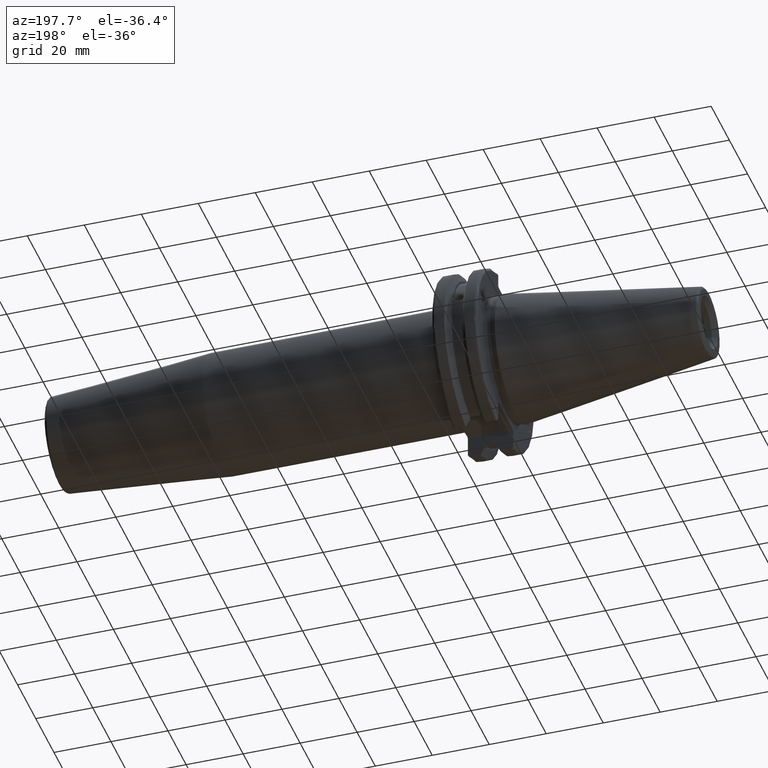
[diagram: clean part render]
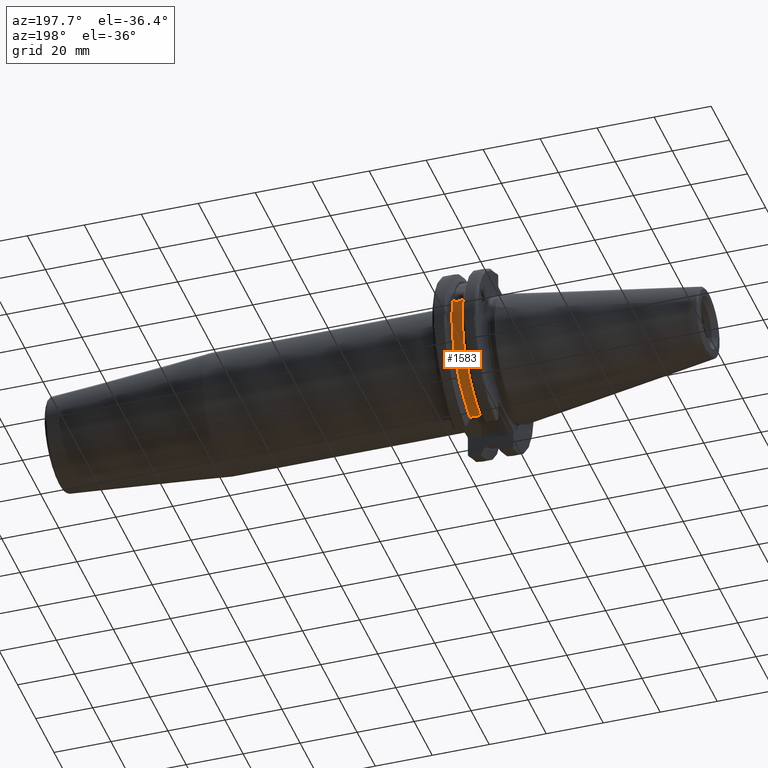
[diagram: same view with one face highlighted and labeled with its STEP entity id]
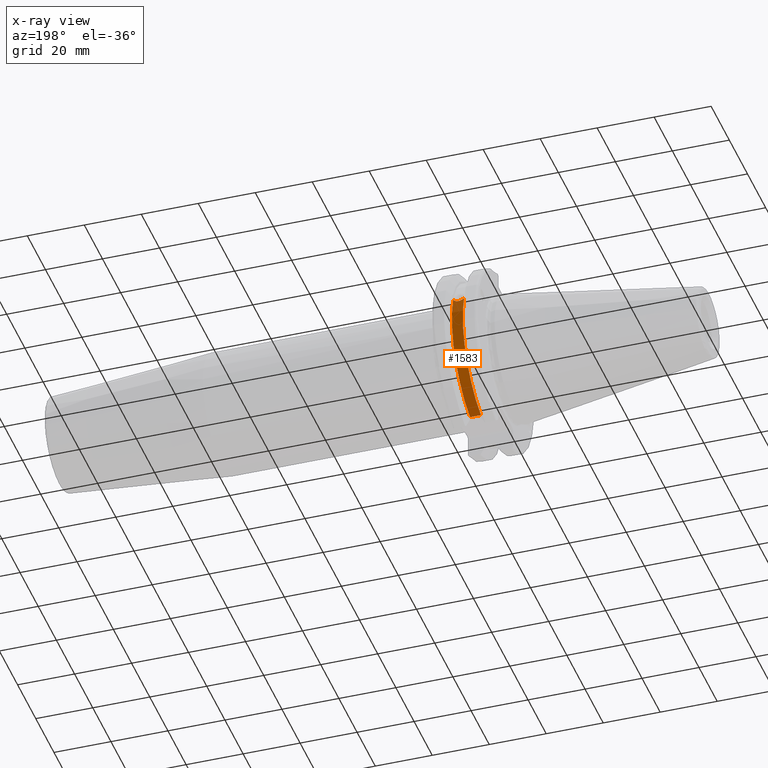
[diagram: x-ray of the same camera — body ghosted, the highlighted face saturated]
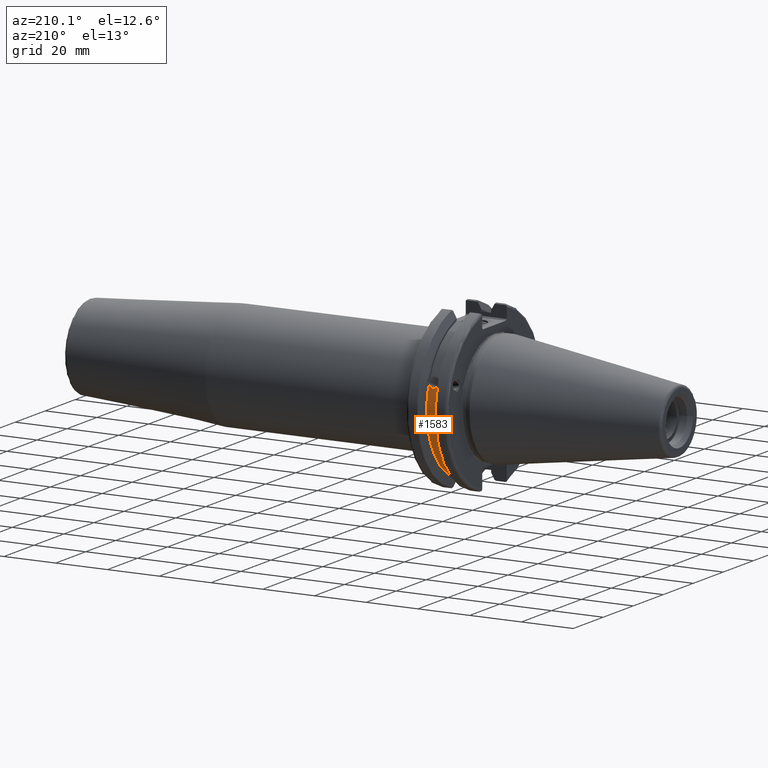
[diagram: same view with one face highlighted and labeled with its STEP entity id]
A machine part, auxiliary view. The second image highlights one B-rep face of the part: STEP entity #1583.
The next image is the same camera in x-ray: the body ghosted, the highlighted face saturated — about 0% of this face is hidden behind the body in this view.
A second angle (auxiliary view) of the same face is appended — the face is thin or edge-on in the first view.
In plain terms, the highlighted cylindrical surface (partial cylindrical patch) has radius 28.15 mm, axis along (1, 0, 0).
Its self-contained STEP definition (entity closure, byte-faithful):
#45=B_SPLINE_CURVE_WITH_KNOTS('',3,(#2684,#2685,#2686,#2687,#2688,#2689,
#2690,#2691,#2692,#2693,#2694,#2695,#2696,#2697),.UNSPECIFIED.,.F.,.F.,
(4,2,2,2,2,2,4),(0.401639126382403,0.474814416953736,0.553950208498303,
0.63308600004287,0.712221791587437,0.791357583132004,0.864532873703335),
 .UNSPECIFIED.);
#165=CYLINDRICAL_SURFACE('',#1754,28.15);
#214=FACE_OUTER_BOUND('',#315,.T.);
#315=EDGE_LOOP('',(#1242,#1243,#1244,#1245));
#411=LINE('',#2773,#508);
#508=VECTOR('',#2073,10.);
#608=CIRCLE('',#1753,28.15);
#609=CIRCLE('',#1755,28.15);
#718=VERTEX_POINT('',#2681);
#719=VERTEX_POINT('',#2683);
#731=VERTEX_POINT('',#2767);
#732=VERTEX_POINT('',#2771);
#907=EDGE_CURVE('',#719,#718,#45,.T.);
#921=EDGE_CURVE('',#731,#719,#608,.T.);
#923=EDGE_CURVE('',#732,#718,#609,.T.);
#924=EDGE_CURVE('',#732,#731,#411,.T.);
#1242=ORIENTED_EDGE('',*,*,#907,.T.);
#1243=ORIENTED_EDGE('',*,*,#923,.F.);
#1244=ORIENTED_EDGE('',*,*,#924,.T.);
#1245=ORIENTED_EDGE('',*,*,#921,.T.);
#1583=ADVANCED_FACE('',(#214),#165,.T.);
#1753=AXIS2_PLACEMENT_3D('',#2768,#2066,#2067);
#1754=AXIS2_PLACEMENT_3D('',#2770,#2069,#2070);
#1755=AXIS2_PLACEMENT_3D('',#2772,#2071,#2072);
#2066=DIRECTION('center_axis',(1.,0.,0.));
#2067=DIRECTION('ref_axis',(0.,0.,-1.));
#2069=DIRECTION('center_axis',(1.,0.,0.));
#2070=DIRECTION('ref_axis',(0.,1.,0.));
#2071=DIRECTION('center_axis',(1.,0.,0.));
#2072=DIRECTION('ref_axis',(0.,0.,-1.));
#2073=DIRECTION('',(-1.,0.,0.));
#2681=CARTESIAN_POINT('',(13.0491,26.734714844398,8.8134852464121));
#2683=CARTESIAN_POINT('',(9.2191,26.734714844398,8.81348524641212));
#2684=CARTESIAN_POINT('Ctrl Pts',(9.2191,26.734714844398,8.81348524641212));
#2685=CARTESIAN_POINT('Ctrl Pts',(9.32533057097183,26.8086519721597,8.58920529678291));
#2686=CARTESIAN_POINT('Ctrl Pts',(9.47682013770509,26.8729987454904,8.3841652999737));
#2687=CARTESIAN_POINT('Ctrl Pts',(9.83557062657411,26.9778908791383,8.04056861831091));
#2688=CARTESIAN_POINT('Ctrl Pts',(10.0716450112988,27.0233016799732,7.88512567185903));
#2689=CARTESIAN_POINT('Ctrl Pts',(10.5890125426388,27.0826966800569,7.6786444840004));
#2690=CARTESIAN_POINT('Ctrl Pts',(10.8703140281848,27.0968804077294,7.62768458768513));
#2691=CARTESIAN_POINT('Ctrl Pts',(11.3978859718152,27.0968804077294,7.62768458768513));
#2692=CARTESIAN_POINT('Ctrl Pts',(11.6791874573612,27.0826966800569,7.6786444840004));
#2693=CARTESIAN_POINT('Ctrl Pts',(12.1965549887012,27.0233016799732,7.88512567185903));
#2694=CARTESIAN_POINT('Ctrl Pts',(12.4326293734259,26.9778908791383,8.04056861831092));
#2695=CARTESIAN_POINT('Ctrl Pts',(12.7913798622949,26.8729987454904,8.38416529997369));
#2696=CARTESIAN_POINT('Ctrl Pts',(12.9428694290282,26.8086519721597,8.58920529678291));
#2697=CARTESIAN_POINT('Ctrl Pts',(13.0491,26.734714844398,8.81348524641211));
#2767=CARTESIAN_POINT('',(9.2191,8.19,-26.932255754021));
#2768=CARTESIAN_POINT('Origin',(9.2191,0.,0.));
#2770=CARTESIAN_POINT('Origin',(11.1341,0.,0.));
#2771=CARTESIAN_POINT('',(13.0491,8.19,-26.932255754021));
#2772=CARTESIAN_POINT('Origin',(13.0491,0.,0.));
#2773=CARTESIAN_POINT('',(11.1341,8.19,-26.932255754021));